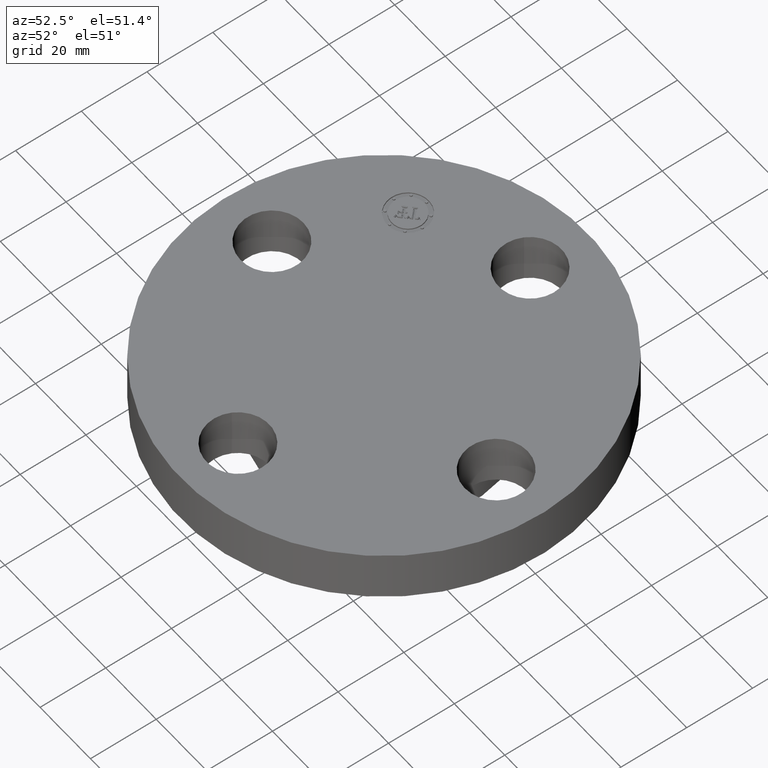
[diagram: clean part render]
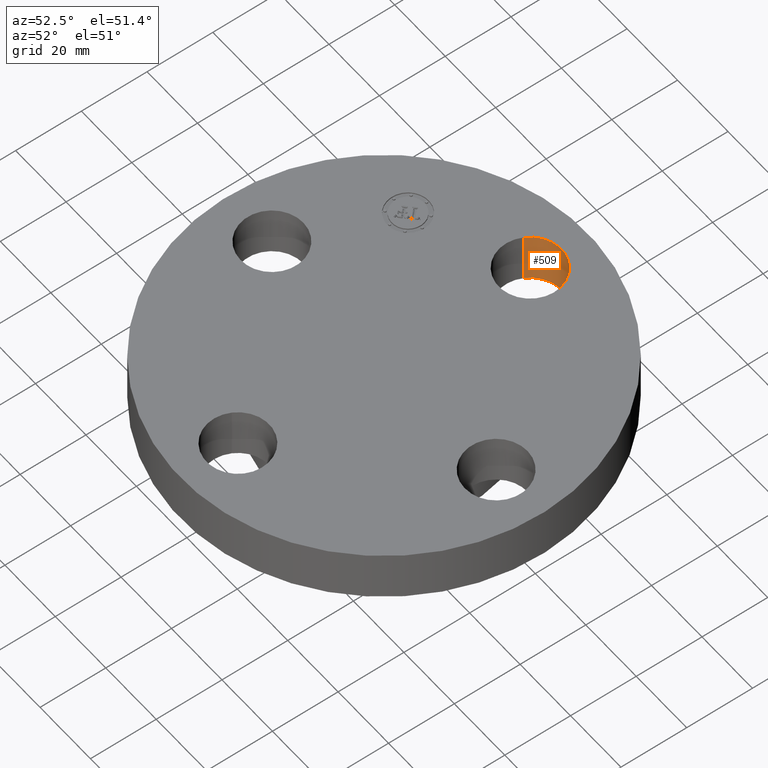
[diagram: same view with one face highlighted and labeled with its STEP entity id]
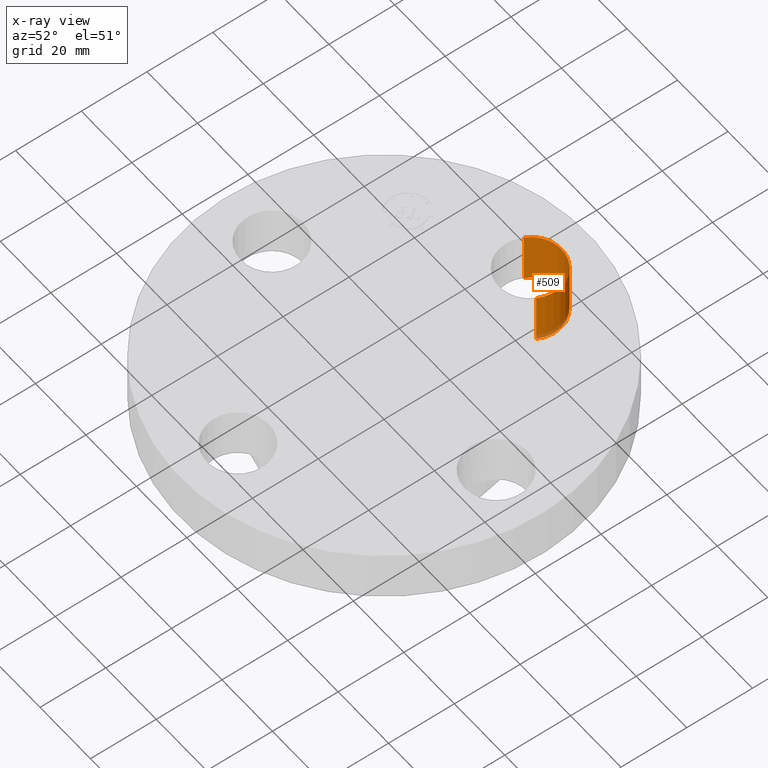
[diagram: x-ray of the same camera — body ghosted, the highlighted face saturated]
A machine part, auxiliary view. The second image highlights one B-rep face of the part: STEP entity #509.
The next image is the same camera in x-ray: the body ghosted, the highlighted face saturated — about 4% of this face is hidden behind the body in this view.
In plain terms, the highlighted cylindrical surface (partial cylindrical patch) has radius 9.525 mm, axis along (0, -0, -1).
Its self-contained STEP definition (entity closure, byte-faithful):
#342=AXIS2_PLACEMENT_3D('Circle Axis2P3D',#340,#341,$) ;
#469=AXIS2_PLACEMENT_3D('Cylinder Axis2P3D',#466,#467,#468) ;
#500=AXIS2_PLACEMENT_3D('Circle Axis2P3D',#498,#499,$) ;
#337=CARTESIAN_POINT('Vertex',(0.32909346071,1.57021542303,0.)) ;
#340=CARTESIAN_POINT('Axis2P3D Location',(-6.99353086378E-017,1.75000000001,0.)) ;
#344=CARTESIAN_POINT('Vertex',(-0.32909346071,1.92978457698,0.)) ;
#466=CARTESIAN_POINT('Axis2P3D Location',(0.,1.75000000001,0.616062992128)) ;
#471=CARTESIAN_POINT('Line Origine',(0.32909346071,1.57021542303,0.310000000001)) ;
#475=CARTESIAN_POINT('Vertex',(0.32909346071,1.57021542303,0.620000000002)) ;
#478=CARTESIAN_POINT('Line Origine',(-0.32909346071,1.92978457698,0.310000000001)) ;
#482=CARTESIAN_POINT('Vertex',(-0.32909346071,1.92978457698,0.620000000002)) ;
#498=CARTESIAN_POINT('Axis2P3D Location',(0.,1.75000000001,0.620000000002)) ;
#341=DIRECTION('Axis2P3D Direction',(0.,0.,-0.0393700787402)) ;
#467=DIRECTION('Axis2P3D Direction',(0.,-0.,-0.0393700787402)) ;
#468=DIRECTION('Axis2P3D XDirection',(-0.0345504945626,0.0188750212049,0.)) ;
#472=DIRECTION('Vector Direction',(0.,0.,-0.0393700787402)) ;
#479=DIRECTION('Vector Direction',(0.,0.,-0.0393700787402)) ;
#499=DIRECTION('Axis2P3D Direction',(0.,-0.,-0.0393700787402)) ;
#473=VECTOR('Line Direction',#472,0.0393700787402) ;
#480=VECTOR('Line Direction',#479,0.0393700787402) ;
#504=ORIENTED_EDGE('',*,*,#484,.F.) ;
#505=ORIENTED_EDGE('',*,*,#346,.T.) ;
#506=ORIENTED_EDGE('',*,*,#477,.T.) ;
#507=ORIENTED_EDGE('',*,*,#502,.F.) ;
#509=ADVANCED_FACE('PartBody',(#508),#470,.F.) ;
#343=CIRCLE('generated circle',#342,0.375000000001) ;
#501=CIRCLE('generated circle',#500,0.375000000001) ;
#470=CYLINDRICAL_SURFACE('generated cylinder',#469,0.375000000001) ;
#346=EDGE_CURVE('',#345,#338,#343,.T.) ;
#477=EDGE_CURVE('',#338,#476,#474,.F.) ;
#484=EDGE_CURVE('',#345,#483,#481,.F.) ;
#502=EDGE_CURVE('',#483,#476,#501,.T.) ;
#503=EDGE_LOOP('',(#504,#505,#506,#507)) ;
#508=FACE_OUTER_BOUND('',#503,.T.) ;
#474=LINE('Line',#471,#473) ;
#481=LINE('Line',#478,#480) ;
#338=VERTEX_POINT('',#337) ;
#345=VERTEX_POINT('',#344) ;
#476=VERTEX_POINT('',#475) ;
#483=VERTEX_POINT('',#482) ;